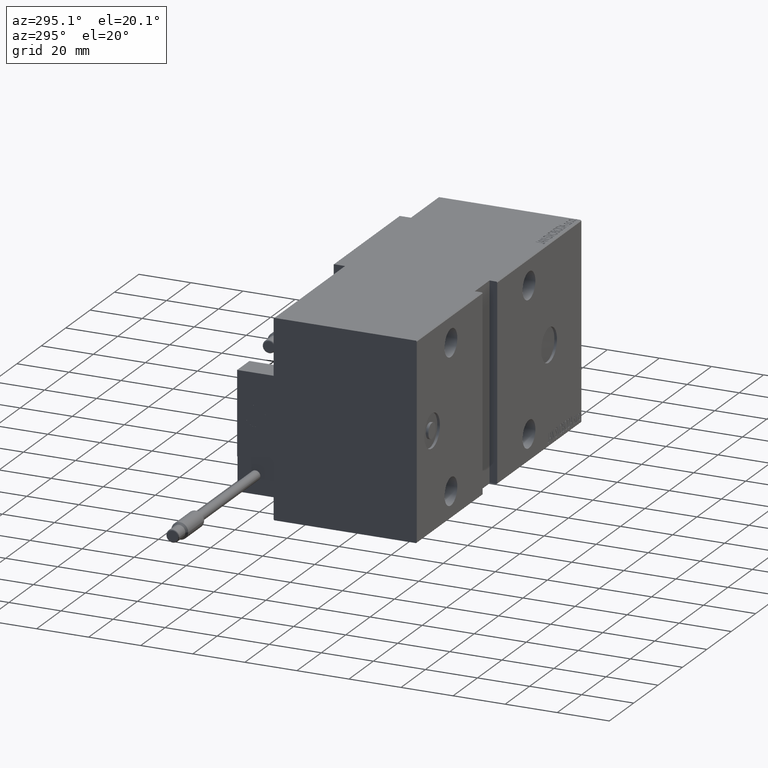
[diagram: clean part render]
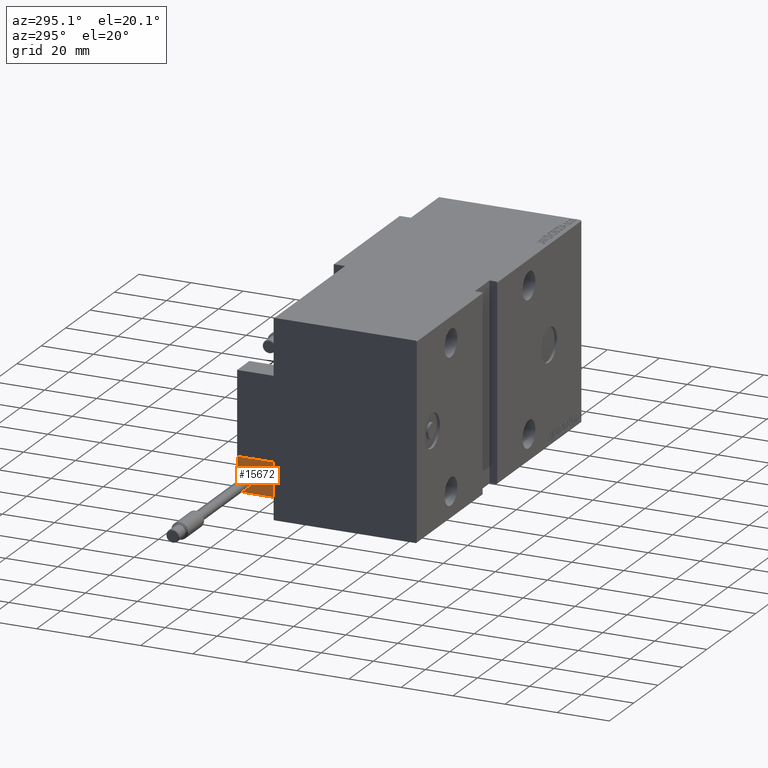
[diagram: same view with one face highlighted and labeled with its STEP entity id]
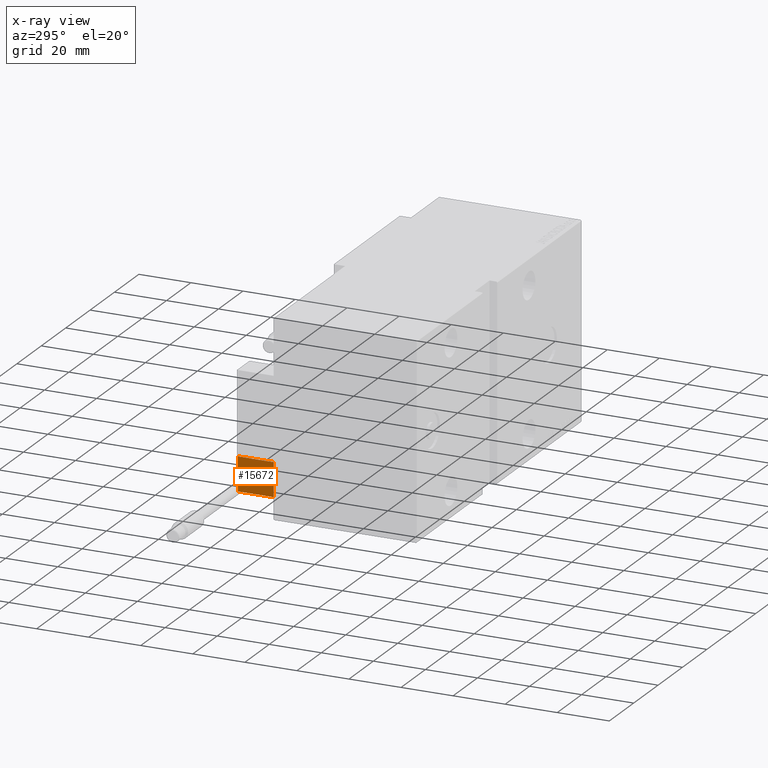
[diagram: x-ray of the same camera — body ghosted, the highlighted face saturated]
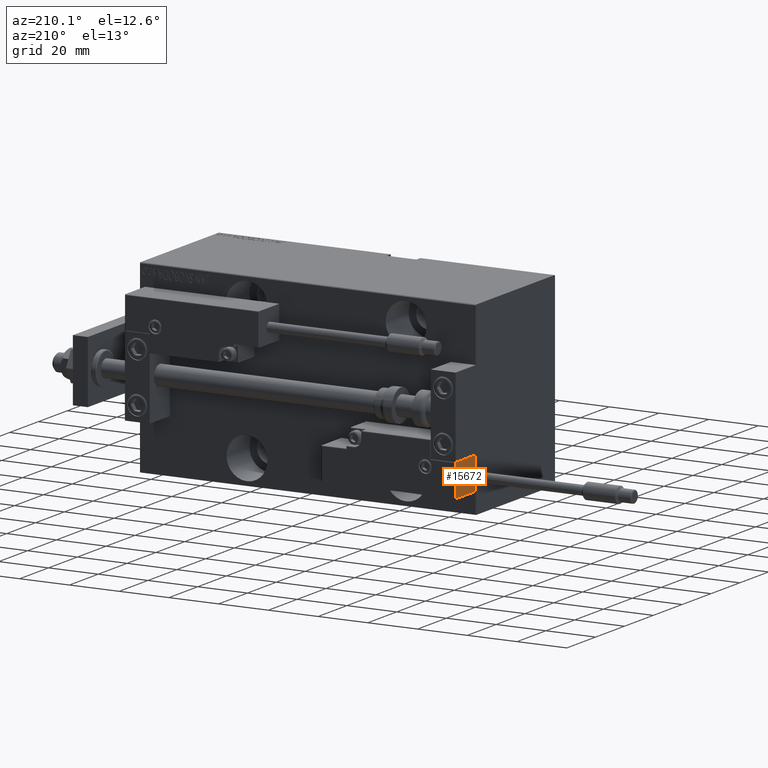
[diagram: same view with one face highlighted and labeled with its STEP entity id]
A machine part, auxiliary view. The second image highlights one B-rep face of the part: STEP entity #15672.
The next image is the same camera in x-ray: the body ghosted, the highlighted face saturated — about 0% of this face is hidden behind the body in this view.
A second angle (auxiliary view) of the same face is appended — the face is thin or edge-on in the first view.
In plain terms, the highlighted planar face has unit normal (1, 0, 0).
Its self-contained STEP definition (entity closure, byte-faithful):
#52 = CARTESIAN_POINT ( 'NONE',  ( -26.99999999999993605, 20.00000000000002132, 13.70000000000000107 ) ) ;
#917 = DIRECTION ( 'NONE',  ( 8.006416042969869188E-16, 1.000000000000000000, 0.000000000000000000 ) ) ;
#1863 = VERTEX_POINT ( 'NONE', #44726 ) ;
#2539 = LINE ( 'NONE', #21006, #30230 ) ;
#2861 = EDGE_CURVE ( 'NONE', #16925, #1863, #11058, .T. ) ;
#3601 = ORIENTED_EDGE ( 'NONE', *, *, #2861, .T. ) ;
#5213 = CARTESIAN_POINT ( 'NONE',  ( -26.99999999999993605, 20.00000000000002132, 14.00000000000000000 ) ) ;
#5899 = DIRECTION ( 'NONE',  ( -0.000000000000000000, -0.000000000000000000, -1.000000000000000000 ) ) ;
#6531 = ORIENTED_EDGE ( 'NONE', *, *, #17476, .T. ) ;
#9492 = DIRECTION ( 'NONE',  ( -8.006416042969869188E-16, -1.000000000000000000, 0.000000000000000000 ) ) ;
#11058 = LINE ( 'NONE', #49817, #21779 ) ;
#12250 = EDGE_CURVE ( 'NONE', #31155, #25918, #28159, .T. ) ;
#13241 = VECTOR ( 'NONE', #5899, 1000.000000000000000 ) ;
#13313 = PLANE ( 'NONE',  #33156 ) ;
#14664 = ORIENTED_EDGE ( 'NONE', *, *, #12250, .F. ) ;
#15106 = DIRECTION ( 'NONE',  ( -0.000000000000000000, -0.000000000000000000, -1.000000000000000000 ) ) ;
#15672 = ADVANCED_FACE ( 'NONE', ( #20865 ), #13313, .F. ) ;
#16925 = VERTEX_POINT ( 'NONE', #52 ) ;
#17476 = EDGE_CURVE ( 'NONE', #1863, #25918, #36299, .T. ) ;
#20865 = FACE_OUTER_BOUND ( 'NONE', #42328, .T. ) ;
#21006 = CARTESIAN_POINT ( 'NONE',  ( -26.99999999999993605, 20.00000000000002132, 13.70000000000000107 ) ) ;
#21779 = VECTOR ( 'NONE', #15106, 1000.000000000000000 ) ;
#24405 = CARTESIAN_POINT ( 'NONE',  ( -26.99999999999993605, 20.00000000000002132, 0.000000000000000000 ) ) ;
#25918 = VERTEX_POINT ( 'NONE', #37732 ) ;
#28159 = LINE ( 'NONE', #47679, #13241 ) ;
#28494 = DIRECTION ( 'NONE',  ( 1.000000000000000000, -8.006416042969869188E-16, 0.000000000000000000 ) ) ;
#30230 = VECTOR ( 'NONE', #36975, 1000.000000000000000 ) ;
#31155 = VERTEX_POINT ( 'NONE', #35076 ) ;
#32617 = EDGE_CURVE ( 'NONE', #31155, #16925, #2539, .T. ) ;
#33156 = AXIS2_PLACEMENT_3D ( 'NONE', #5213, #28494, #917 ) ;
#33290 = ORIENTED_EDGE ( 'NONE', *, *, #32617, .T. ) ;
#35076 = CARTESIAN_POINT ( 'NONE',  ( -26.99999999999994671, 7.000000000000005329, 13.70000000000000107 ) ) ;
#36299 = LINE ( 'NONE', #24405, #45345 ) ;
#36975 = DIRECTION ( 'NONE',  ( 8.006416042969869188E-16, 1.000000000000000000, -0.000000000000000000 ) ) ;
#37732 = CARTESIAN_POINT ( 'NONE',  ( -26.99999999999994671, 7.000000000000005329, 0.000000000000000000 ) ) ;
#42328 = EDGE_LOOP ( 'NONE', ( #14664, #33290, #3601, #6531 ) ) ;
#44726 = CARTESIAN_POINT ( 'NONE',  ( -26.99999999999993605, 20.00000000000002132, 0.000000000000000000 ) ) ;
#45345 = VECTOR ( 'NONE', #9492, 1000.000000000000000 ) ;
#47679 = CARTESIAN_POINT ( 'NONE',  ( -26.99999999999994671, 7.000000000000005329, 14.00000000000000000 ) ) ;
#49817 = CARTESIAN_POINT ( 'NONE',  ( -26.99999999999993605, 20.00000000000002132, 14.00000000000000000 ) ) ;